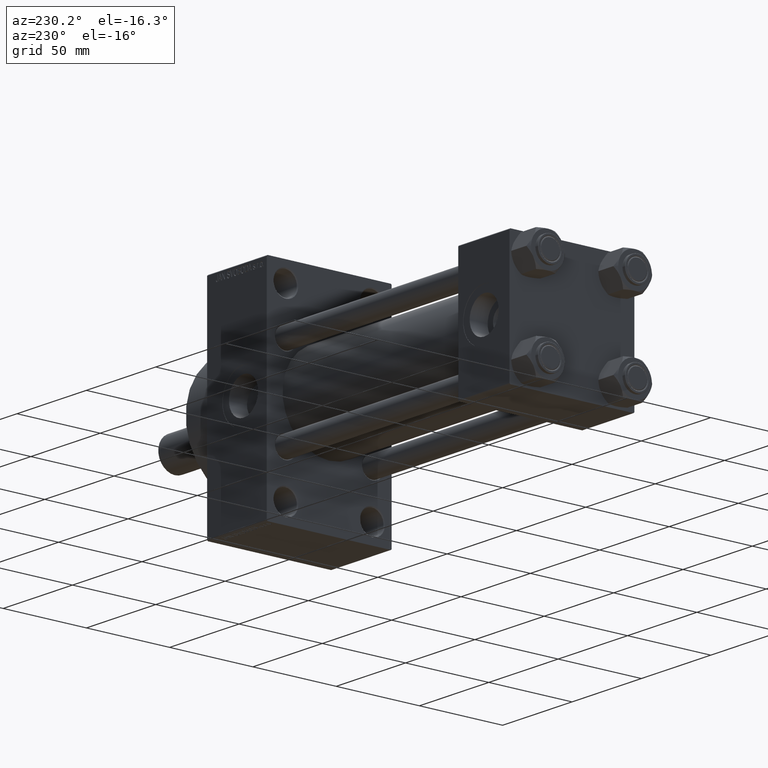
[diagram: clean part render]
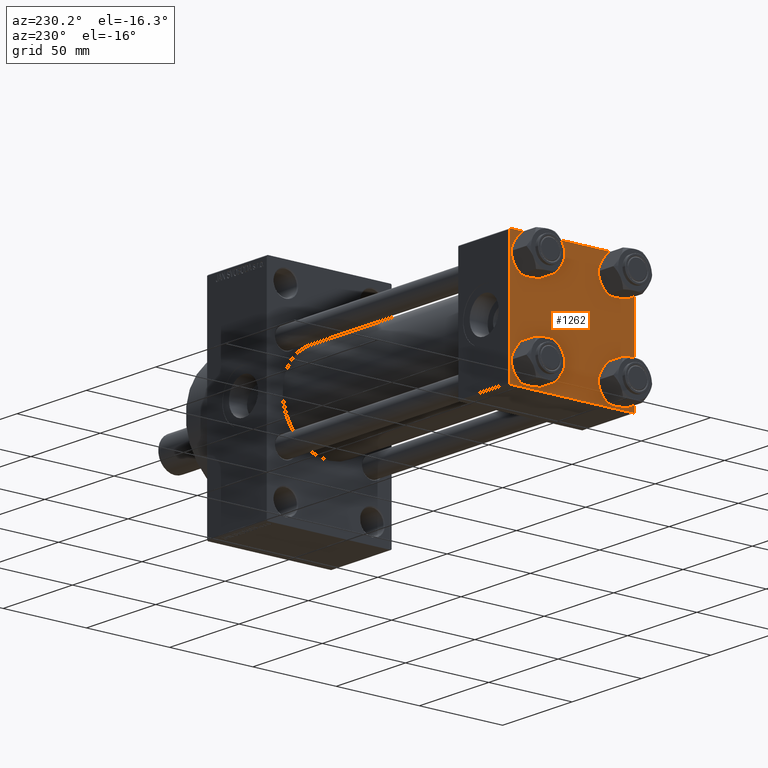
[diagram: same view with one face highlighted and labeled with its STEP entity id]
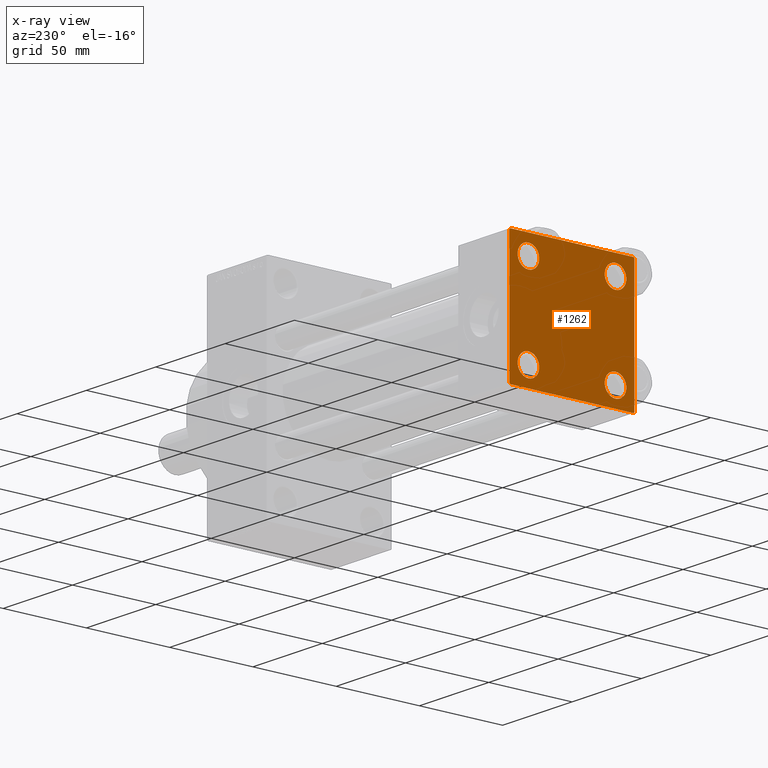
[diagram: x-ray of the same camera — body ghosted, the highlighted face saturated]
A machine part, auxiliary view. The second image highlights one B-rep face of the part: STEP entity #1262.
The next image is the same camera in x-ray: the body ghosted, the highlighted face saturated — about 0% of this face is hidden behind the body in this view.
In plain terms, the highlighted planar face has unit normal (-1, 0, 0).
Its self-contained STEP definition (entity closure, byte-faithful):
#598 = VERTEX_POINT ( 'NONE', #16363 ) ;
#994 = DIRECTION ( 'NONE',  ( 0.000000000000000000, -1.000000000000000000, -9.251858538542972814E-17 ) ) ;
#1062 = CARTESIAN_POINT ( 'NONE',  ( 0.000000000000000000, -37.24999999999975842, -37.25000000000027001 ) ) ;
#1262 = ADVANCED_FACE ( 'NONE', ( #26236, #44810, #30827, #38299, #41919 ), #38066, .T. ) ;
#1316 = VERTEX_POINT ( 'NONE', #13456 ) ;
#1668 = LINE ( 'NONE', #8661, #29833 ) ;
#1681 = VERTEX_POINT ( 'NONE', #11622 ) ;
#1918 = VERTEX_POINT ( 'NONE', #21695 ) ;
#2354 = LINE ( 'NONE', #46471, #43803 ) ;
#2891 = CARTESIAN_POINT ( 'NONE',  ( 0.000000000000000000, 37.49999999999999289, 37.00000000000000000 ) ) ;
#3036 = EDGE_LOOP ( 'NONE', ( #18113, #35728, #6710, #12357, #21891, #25433, #19953, #27771 ) ) ;
#3552 = DIRECTION ( 'NONE',  ( 1.000000000000000000, -0.000000000000000000, 0.000000000000000000 ) ) ;
#4281 = VERTEX_POINT ( 'NONE', #24259 ) ;
#4308 = CARTESIAN_POINT ( 'NONE',  ( 0.000000000000000000, 0.000000000000000000, 0.000000000000000000 ) ) ;
#4828 = EDGE_CURVE ( 'NONE', #14734, #4281, #39421, .T. ) ;
#4848 = LINE ( 'NONE', #13455, #17168 ) ;
#4925 = DIRECTION ( 'NONE',  ( 0.000000000000000000, -0.7071067811865524577, 0.7071067811865426878 ) ) ;
#5999 = CARTESIAN_POINT ( 'NONE',  ( 0.000000000000000000, 26.14999999999999858, -26.15000000000000213 ) ) ;
#6710 = ORIENTED_EDGE ( 'NONE', *, *, #18058, .T. ) ;
#7194 = AXIS2_PLACEMENT_3D ( 'NONE', #21482, #36193, #17875 ) ;
#8661 = CARTESIAN_POINT ( 'NONE',  ( 0.000000000000000000, -37.50000000000000711, 37.49999999999999289 ) ) ;
#8886 = EDGE_CURVE ( 'NONE', #13914, #46966, #37141, .T. ) ;
#8899 = VECTOR ( 'NONE', #994, 1000.000000000000000 ) ;
#8919 = EDGE_CURVE ( 'NONE', #35006, #1918, #14165, .T. ) ;
#9104 = EDGE_CURVE ( 'NONE', #1918, #35006, #15709, .T. ) ;
#9137 = DIRECTION ( 'NONE',  ( 0.000000000000000000, 9.251858538542971581E-17, -1.000000000000000000 ) ) ;
#9345 = LINE ( 'NONE', #45756, #37596 ) ;
#9545 = VECTOR ( 'NONE', #22190, 1000.000000000000000 ) ;
#10683 = CARTESIAN_POINT ( 'NONE',  ( 0.000000000000000000, 37.49999999999999289, -36.99999999999998579 ) ) ;
#10850 = AXIS2_PLACEMENT_3D ( 'NONE', #31379, #46084, #13074 ) ;
#11126 = EDGE_CURVE ( 'NONE', #42474, #13914, #40671, .T. ) ;
#11622 = CARTESIAN_POINT ( 'NONE',  ( 0.000000000000000000, 36.99999999999997868, -37.50000000000000000 ) ) ;
#11686 = LINE ( 'NONE', #1062, #30598 ) ;
#11786 = DIRECTION ( 'NONE',  ( -1.000000000000000000, 0.000000000000000000, -0.000000000000000000 ) ) ;
#12241 = VERTEX_POINT ( 'NONE', #28817 ) ;
#12357 = ORIENTED_EDGE ( 'NONE', *, *, #26798, .T. ) ;
#12483 = VERTEX_POINT ( 'NONE', #37962 ) ;
#12587 = CARTESIAN_POINT ( 'NONE',  ( 0.000000000000000000, 37.49999999999999289, -37.50000000000000000 ) ) ;
#12623 = DIRECTION ( 'NONE',  ( 1.000000000000000000, -0.000000000000000000, 0.000000000000000000 ) ) ;
#12787 = DIRECTION ( 'NONE',  ( 1.000000000000000000, -0.000000000000000000, 0.000000000000000000 ) ) ;
#13074 = DIRECTION ( 'NONE',  ( 0.000000000000000000, 0.000000000000000000, 1.000000000000000000 ) ) ;
#13455 = CARTESIAN_POINT ( 'NONE',  ( -0.000000000000000000, -37.25000000000000000, 37.25000000000000000 ) ) ;
#13456 = CARTESIAN_POINT ( 'NONE',  ( 0.000000000000000000, -26.14999999999999147, 19.64999999999999147 ) ) ;
#13914 = VERTEX_POINT ( 'NONE', #2891 ) ;
#14165 = CIRCLE ( 'NONE', #7194, 6.500000000000015987 ) ;
#14334 = CARTESIAN_POINT ( 'NONE',  ( 0.000000000000000000, -26.14999999999999147, 32.65000000000003411 ) ) ;
#14734 = VERTEX_POINT ( 'NONE', #41994 ) ;
#14755 = CARTESIAN_POINT ( 'NONE',  ( 0.000000000000000000, -37.50000000000000000, -37.00000000000003553 ) ) ;
#15595 = DIRECTION ( 'NONE',  ( 0.000000000000000000, 0.7071067811865474617, -0.7071067811865474617 ) ) ;
#15709 = CIRCLE ( 'NONE', #39554, 6.500000000000015987 ) ;
#16006 = DIRECTION ( 'NONE',  ( 1.000000000000000000, -0.000000000000000000, 0.000000000000000000 ) ) ;
#16363 = CARTESIAN_POINT ( 'NONE',  ( 0.000000000000000000, 26.14999999999999858, 32.65000000000002700 ) ) ;
#17168 = VECTOR ( 'NONE', #31995, 1000.000000000000114 ) ;
#17875 = DIRECTION ( 'NONE',  ( 0.000000000000000000, 0.000000000000000000, 1.000000000000000000 ) ) ;
#18058 = EDGE_CURVE ( 'NONE', #1681, #28058, #27265, .T. ) ;
#18113 = ORIENTED_EDGE ( 'NONE', *, *, #8886, .T. ) ;
#18262 = DIRECTION ( 'NONE',  ( 0.000000000000000000, 0.000000000000000000, 1.000000000000000000 ) ) ;
#18479 = DIRECTION ( 'NONE',  ( 0.000000000000000000, 0.000000000000000000, 1.000000000000000000 ) ) ;
#19536 = VERTEX_POINT ( 'NONE', #14334 ) ;
#19686 = CARTESIAN_POINT ( 'NONE',  ( 0.000000000000000000, -37.00000000000002132, -37.50000000000000711 ) ) ;
#19724 = ORIENTED_EDGE ( 'NONE', *, *, #9104, .T. ) ;
#19875 = CIRCLE ( 'NONE', #20627, 6.500000000000023093 ) ;
#19953 = ORIENTED_EDGE ( 'NONE', *, *, #42815, .F. ) ;
#20627 = AXIS2_PLACEMENT_3D ( 'NONE', #45639, #12623, #42257 ) ;
#21104 = EDGE_CURVE ( 'NONE', #598, #12483, #35943, .T. ) ;
#21482 = CARTESIAN_POINT ( 'NONE',  ( 0.000000000000000000, 26.14999999999999858, -26.15000000000000213 ) ) ;
#21695 = CARTESIAN_POINT ( 'NONE',  ( 0.000000000000000000, 26.14999999999999858, -32.65000000000001990 ) ) ;
#21891 = ORIENTED_EDGE ( 'NONE', *, *, #26575, .F. ) ;
#22190 = DIRECTION ( 'NONE',  ( 0.000000000000000000, 0.000000000000000000, -1.000000000000000000 ) ) ;
#23831 = AXIS2_PLACEMENT_3D ( 'NONE', #32718, #3552, #18262 ) ;
#24182 = CARTESIAN_POINT ( 'NONE',  ( 0.000000000000000000, -26.14999999999999147, 26.15000000000000924 ) ) ;
#24259 = CARTESIAN_POINT ( 'NONE',  ( 0.000000000000000000, -26.14999999999999147, -19.64999999999999503 ) ) ;
#24844 = EDGE_LOOP ( 'NONE', ( #40058, #19724 ) ) ;
#25433 = ORIENTED_EDGE ( 'NONE', *, *, #39579, .T. ) ;
#26236 = FACE_BOUND ( 'NONE', #26998, .T. ) ;
#26400 = CARTESIAN_POINT ( 'NONE',  ( 0.000000000000000000, -26.14999999999999147, -26.15000000000000924 ) ) ;
#26575 = EDGE_CURVE ( 'NONE', #12241, #32024, #1668, .T. ) ;
#26798 = EDGE_CURVE ( 'NONE', #28058, #32024, #11686, .T. ) ;
#26935 = ORIENTED_EDGE ( 'NONE', *, *, #27205, .T. ) ;
#26998 = EDGE_LOOP ( 'NONE', ( #26935, #38288 ) ) ;
#27039 = EDGE_LOOP ( 'NONE', ( #28897, #47048 ) ) ;
#27205 = EDGE_CURVE ( 'NONE', #19536, #1316, #19875, .T. ) ;
#27265 = LINE ( 'NONE', #12587, #8899 ) ;
#27651 = CARTESIAN_POINT ( 'NONE',  ( 0.000000000000000000, 26.14999999999999858, -19.64999999999998792 ) ) ;
#27771 = ORIENTED_EDGE ( 'NONE', *, *, #11126, .T. ) ;
#28058 = VERTEX_POINT ( 'NONE', #19686 ) ;
#28817 = CARTESIAN_POINT ( 'NONE',  ( 0.000000000000000000, -37.50000000000000711, 36.99999999999999289 ) ) ;
#28897 = ORIENTED_EDGE ( 'NONE', *, *, #37452, .T. ) ;
#29194 = CARTESIAN_POINT ( 'NONE',  ( 0.000000000000000000, 37.49999999999999289, 37.50000000000000000 ) ) ;
#29833 = VECTOR ( 'NONE', #9137, 1000.000000000000000 ) ;
#30598 = VECTOR ( 'NONE', #4925, 1000.000000000000000 ) ;
#30827 = FACE_BOUND ( 'NONE', #24844, .T. ) ;
#31186 = DIRECTION ( 'NONE',  ( 1.000000000000000000, -0.000000000000000000, 0.000000000000000000 ) ) ;
#31379 = CARTESIAN_POINT ( 'NONE',  ( 0.000000000000000000, -26.14999999999999147, -26.15000000000000924 ) ) ;
#31995 = DIRECTION ( 'NONE',  ( -0.000000000000000000, 0.7071067811865474617, 0.7071067811865474617 ) ) ;
#32024 = VERTEX_POINT ( 'NONE', #14755 ) ;
#32718 = CARTESIAN_POINT ( 'NONE',  ( 0.000000000000000000, 26.14999999999999858, 26.15000000000000213 ) ) ;
#33174 = DIRECTION ( 'NONE',  ( 1.000000000000000000, -0.000000000000000000, 0.000000000000000000 ) ) ;
#33198 = CARTESIAN_POINT ( 'NONE',  ( 0.000000000000000000, 37.24999999999999289, 37.24999999999999289 ) ) ;
#34318 = CARTESIAN_POINT ( 'NONE',  ( 0.000000000000000000, 26.14999999999999858, 26.15000000000000213 ) ) ;
#34440 = DIRECTION ( 'NONE',  ( -0.000000000000000000, 0.000000000000000000, 1.000000000000000000 ) ) ;
#34722 = DIRECTION ( 'NONE',  ( 0.000000000000000000, 0.000000000000000000, 1.000000000000000000 ) ) ;
#35006 = VERTEX_POINT ( 'NONE', #27651 ) ;
#35728 = ORIENTED_EDGE ( 'NONE', *, *, #44275, .T. ) ;
#35943 = CIRCLE ( 'NONE', #42007, 6.500000000000023093 ) ;
#36193 = DIRECTION ( 'NONE',  ( 1.000000000000000000, -0.000000000000000000, 0.000000000000000000 ) ) ;
#36202 = CARTESIAN_POINT ( 'NONE',  ( 0.000000000000000000, 36.99999999999999289, 37.50000000000000000 ) ) ;
#36948 = CIRCLE ( 'NONE', #23831, 6.500000000000023093 ) ;
#37141 = LINE ( 'NONE', #29194, #9545 ) ;
#37452 = EDGE_CURVE ( 'NONE', #4281, #14734, #39305, .T. ) ;
#37596 = VECTOR ( 'NONE', #42139, 1000.000000000000000 ) ;
#37962 = CARTESIAN_POINT ( 'NONE',  ( 0.000000000000000000, 26.14999999999999858, 19.64999999999998437 ) ) ;
#38066 = PLANE ( 'NONE',  #44019 ) ;
#38288 = ORIENTED_EDGE ( 'NONE', *, *, #38322, .T. ) ;
#38299 = FACE_BOUND ( 'NONE', #40995, .T. ) ;
#38322 = EDGE_CURVE ( 'NONE', #1316, #19536, #42438, .T. ) ;
#39127 = DIRECTION ( 'NONE',  ( 0.000000000000000000, 0.000000000000000000, 1.000000000000000000 ) ) ;
#39305 = CIRCLE ( 'NONE', #10850, 6.500000000000015987 ) ;
#39421 = CIRCLE ( 'NONE', #44819, 6.500000000000015987 ) ;
#39554 = AXIS2_PLACEMENT_3D ( 'NONE', #5999, #12787, #34722 ) ;
#39579 = EDGE_CURVE ( 'NONE', #12241, #41652, #4848, .T. ) ;
#40058 = ORIENTED_EDGE ( 'NONE', *, *, #8919, .T. ) ;
#40671 = LINE ( 'NONE', #33198, #46536 ) ;
#40745 = ORIENTED_EDGE ( 'NONE', *, *, #46301, .T. ) ;
#40995 = EDGE_LOOP ( 'NONE', ( #45721, #40745 ) ) ;
#41652 = VERTEX_POINT ( 'NONE', #43370 ) ;
#41919 = FACE_OUTER_BOUND ( 'NONE', #3036, .T. ) ;
#41994 = CARTESIAN_POINT ( 'NONE',  ( 0.000000000000000000, -26.14999999999999147, -32.65000000000002700 ) ) ;
#42007 = AXIS2_PLACEMENT_3D ( 'NONE', #34318, #16006, #45406 ) ;
#42139 = DIRECTION ( 'NONE',  ( 0.000000000000000000, -1.000000000000000000, -9.251858538542971581E-17 ) ) ;
#42257 = DIRECTION ( 'NONE',  ( 0.000000000000000000, 0.000000000000000000, 1.000000000000000000 ) ) ;
#42438 = CIRCLE ( 'NONE', #45501, 6.500000000000023093 ) ;
#42474 = VERTEX_POINT ( 'NONE', #36202 ) ;
#42815 = EDGE_CURVE ( 'NONE', #42474, #41652, #9345, .T. ) ;
#43093 = DIRECTION ( 'NONE',  ( -0.000000000000000000, -0.7071067811865474617, -0.7071067811865474617 ) ) ;
#43370 = CARTESIAN_POINT ( 'NONE',  ( 0.000000000000000000, -37.00000000000000711, 37.49999999999999289 ) ) ;
#43803 = VECTOR ( 'NONE', #43093, 1000.000000000000114 ) ;
#44019 = AXIS2_PLACEMENT_3D ( 'NONE', #4308, #11786, #34440 ) ;
#44275 = EDGE_CURVE ( 'NONE', #46966, #1681, #2354, .T. ) ;
#44810 = FACE_BOUND ( 'NONE', #27039, .T. ) ;
#44819 = AXIS2_PLACEMENT_3D ( 'NONE', #26400, #33174, #18479 ) ;
#45406 = DIRECTION ( 'NONE',  ( 0.000000000000000000, 0.000000000000000000, 1.000000000000000000 ) ) ;
#45501 = AXIS2_PLACEMENT_3D ( 'NONE', #24182, #31186, #39127 ) ;
#45639 = CARTESIAN_POINT ( 'NONE',  ( 0.000000000000000000, -26.14999999999999147, 26.15000000000000924 ) ) ;
#45721 = ORIENTED_EDGE ( 'NONE', *, *, #21104, .T. ) ;
#45756 = CARTESIAN_POINT ( 'NONE',  ( 0.000000000000000000, 37.49999999999999289, 37.50000000000000000 ) ) ;
#46084 = DIRECTION ( 'NONE',  ( 1.000000000000000000, -0.000000000000000000, 0.000000000000000000 ) ) ;
#46301 = EDGE_CURVE ( 'NONE', #12483, #598, #36948, .T. ) ;
#46471 = CARTESIAN_POINT ( 'NONE',  ( 0.000000000000000000, 37.24999999999998579, -37.24999999999998579 ) ) ;
#46536 = VECTOR ( 'NONE', #15595, 1000.000000000000114 ) ;
#46966 = VERTEX_POINT ( 'NONE', #10683 ) ;
#47048 = ORIENTED_EDGE ( 'NONE', *, *, #4828, .T. ) ;